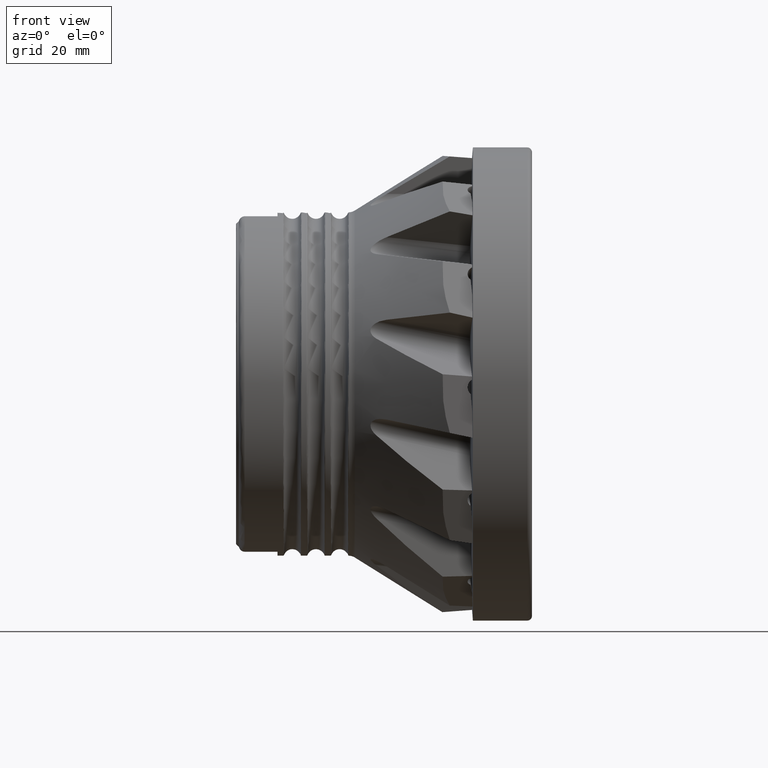
[diagram: clean part render]
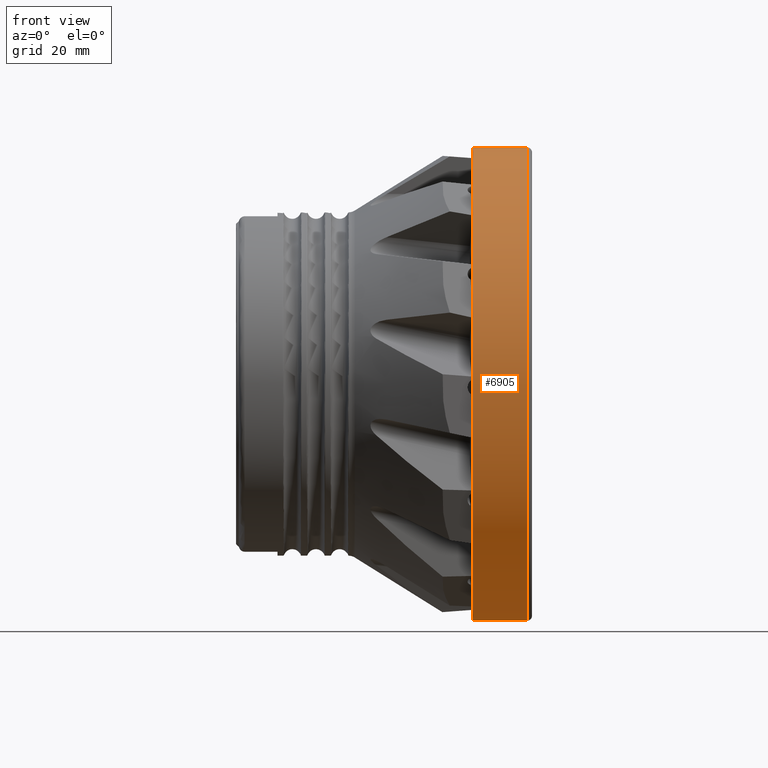
[diagram: same view with one face highlighted and labeled with its STEP entity id]
A machine part, front view. The second image highlights one B-rep face of the part: STEP entity #6905.
In plain terms, the highlighted cylindrical surface (bore or boss wall) has radius 39.9961 mm, axis along (1, 0, -0).
Its self-contained STEP definition (entity closure, byte-faithful):
#51 = CYLINDRICAL_SURFACE ( 'NONE', #3650, 39.99610270826729400 ) ;
#123 = EDGE_CURVE ( 'NONE', #4531, #4531, #3860, .T. ) ;
#399 = AXIS2_PLACEMENT_3D ( 'NONE', #6801, #6775, #6201 ) ;
#419 = EDGE_CURVE ( 'NONE', #2639, #2639, #7274, .T. ) ;
#660 = DIRECTION ( 'NONE',  ( 1.000000000000000000, 1.224393243278134900E-016, -0.0000000000000000000 ) ) ;
#2036 = DIRECTION ( 'NONE',  ( 1.000000000000000000, 1.224393243278134900E-016, -0.0000000000000000000 ) ) ;
#2639 = VERTEX_POINT ( 'NONE', #3408 ) ;
#3133 = AXIS2_PLACEMENT_3D ( 'NONE', #6353, #2036, #7051 ) ;
#3408 = CARTESIAN_POINT ( 'NONE',  ( -0.1523557547776340500, 39.99610270826729400, 0.0000000000000000000 ) ) ;
#3577 = DIRECTION ( 'NONE',  ( -8.674462552663839900E-017, 1.000000000000000000, 0.0000000000000000000 ) ) ;
#3649 = ORIENTED_EDGE ( 'NONE', *, *, #419, .F. ) ;
#3650 = AXIS2_PLACEMENT_3D ( 'NONE', #7840, #660, #3577 ) ;
#3860 = CIRCLE ( 'NONE', #399, 39.99610270826729400 ) ;
#4531 = VERTEX_POINT ( 'NONE', #5504 ) ;
#4569 = FACE_OUTER_BOUND ( 'NONE', #7901, .T. ) ;
#5032 = FACE_OUTER_BOUND ( 'NONE', #8640, .T. ) ;
#5342 = ORIENTED_EDGE ( 'NONE', *, *, #123, .T. ) ;
#5504 = CARTESIAN_POINT ( 'NONE',  ( -9.389355877741751400, 39.99610270826729400, 0.0000000000000000000 ) ) ;
#6201 = DIRECTION ( 'NONE',  ( -1.301169382899575900E-016, 1.000000000000000000, 0.0000000000000000000 ) ) ;
#6353 = CARTESIAN_POINT ( 'NONE',  ( -0.1523557547776291400, -2.191292708102259500E-015, 0.0000000000000000000 ) ) ;
#6775 = DIRECTION ( 'NONE',  ( 1.000000000000000000, 1.224393243278134900E-016, -0.0000000000000000000 ) ) ;
#6801 = CARTESIAN_POINT ( 'NONE',  ( -9.389355877741746100, -3.322264761973915800E-015, 0.0000000000000000000 ) ) ;
#6905 = ADVANCED_FACE ( 'NONE', ( #5032, #4569 ), #51, .T. ) ;
#7051 = DIRECTION ( 'NONE',  ( -1.226623220337621100E-016, 1.000000000000000000, 0.0000000000000000000 ) ) ;
#7274 = CIRCLE ( 'NONE', #3133, 39.99610270826729400 ) ;
#7840 = CARTESIAN_POINT ( 'NONE',  ( 17.74461256101764300, 0.0000000000000000000, 0.0000000000000000000 ) ) ;
#7901 = EDGE_LOOP ( 'NONE', ( #5342 ) ) ;
#8640 = EDGE_LOOP ( 'NONE', ( #3649 ) ) ;